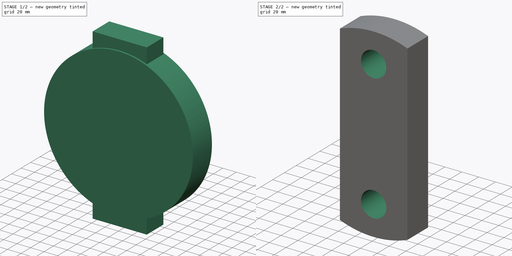
[diagram: build sequence overview — one tinted view per stage of 2, left to right]
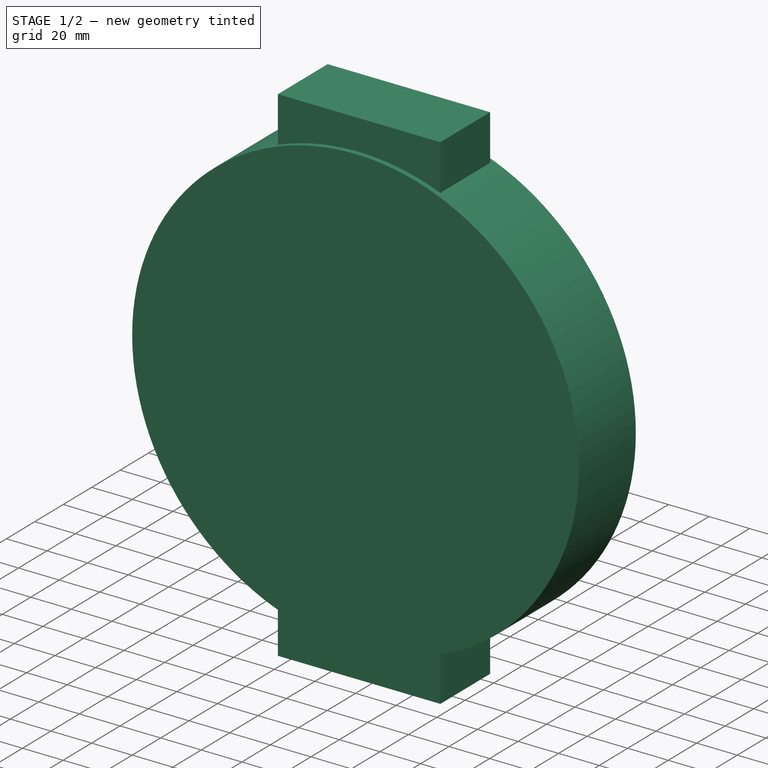
[diagram: stage 1 of 2 — iso view after this stage's code; geometry added in this stage tinted green]
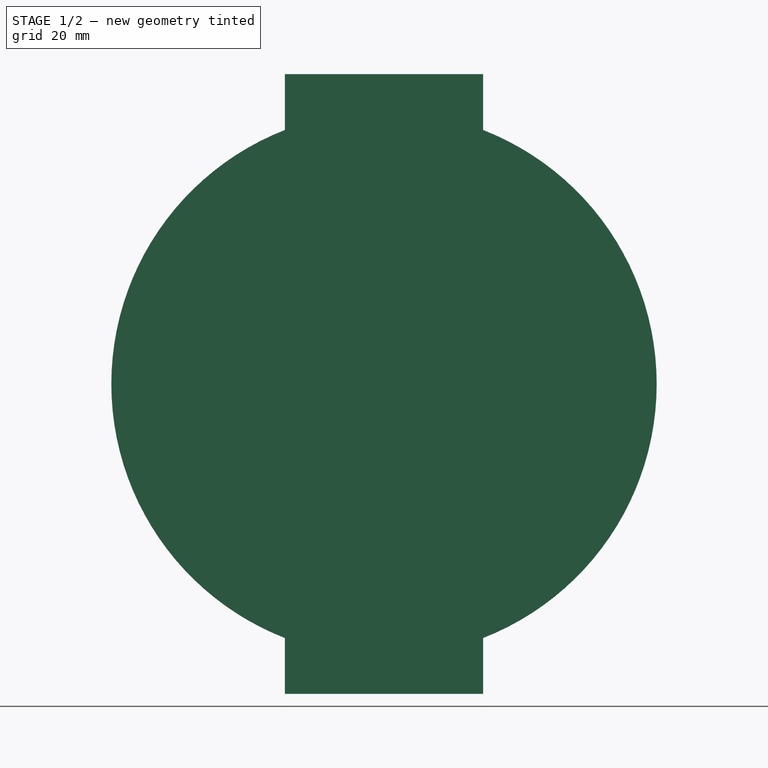
[diagram: stage 1 of 2 — front view after this stage's code; geometry added in this stage tinted green]
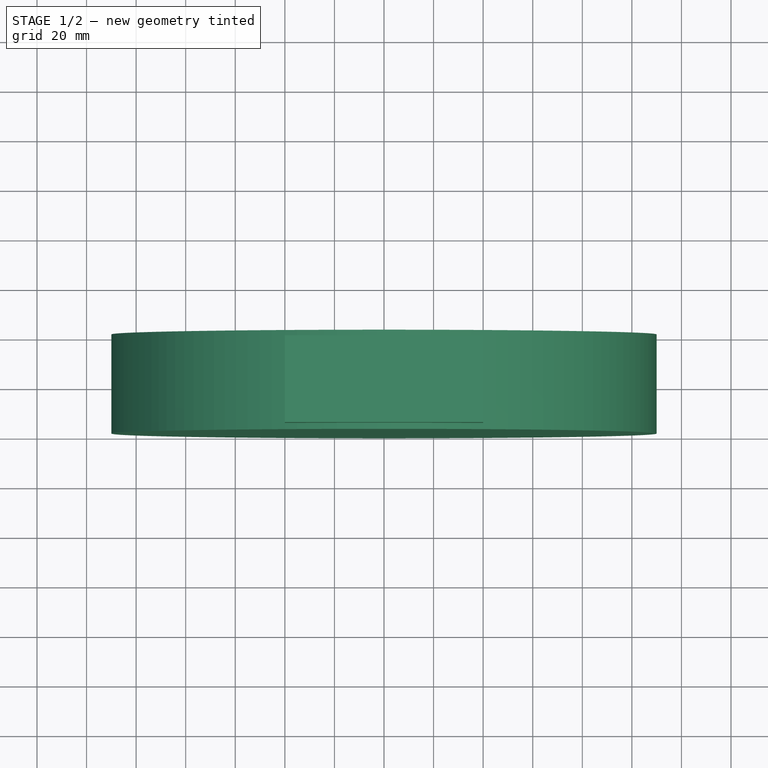
[diagram: stage 1 of 2 — top view after this stage's code; geometry added in this stage tinted green]
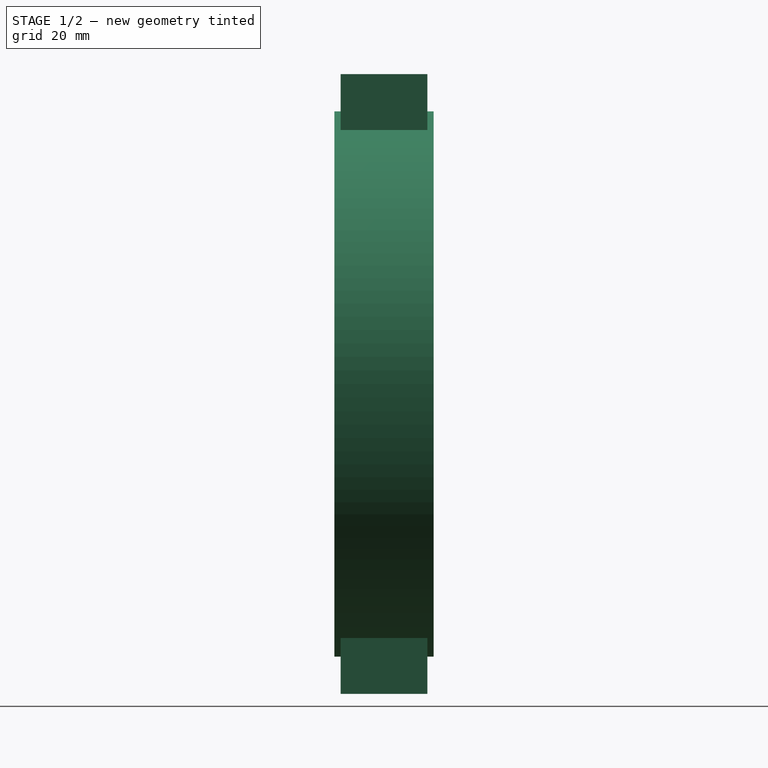
[diagram: stage 1 of 2 — right view after this stage's code; geometry added in this stage tinted green]
FCSTD DOCUMENT  (FreeCAD 0.16RUnknown)
Label: lateral1
License: All rights reserved
LicenseURL: http://en.wikipedia.org/wiki/All_rights_reserved
objects: Sketcher::SketchObject×3, PartDesign::Pad×2, Part::MultiCommon×1, PartDesign::Pocket×1
note: 10 computed .brp shape members not serialized (recipe doc carries the construction recipe); baked Part::Feature solids carry a one-line shape summary decoded from their .brp

FEATURE [Sketcher::SketchObject] Sketch
  Placement = pos=(0,0,0) rot=(-1,0,0;4.71239rad)
  sketch-geometry (4):
    g0: LineSegment StartX=-40 StartY=125 StartZ=0 EndX=40 EndY=125 EndZ=0
    g1: LineSegment StartX=40 StartY=125 StartZ=0 EndX=40 EndY=-125 EndZ=0
    g2: LineSegment StartX=40 StartY=-125 StartZ=0 EndX=-40 EndY=-125 EndZ=0
    g3: LineSegment StartX=-40 StartY=-125 StartZ=0 EndX=-40 EndY=125 EndZ=0
  constraints (12):
    c: Coincident(g0,g1)
    c: Coincident(g1,g2)
    c: Coincident(g2,g3)
    c: Coincident(g3,g0)
    c: Horizontal(g0)
    c: Horizontal(g2)
    c: Vertical(g1)
    c: Vertical(g3)
    c: Symmetric(g0,g0,g-2)
    c: Symmetric(g0,g1,g-1)
    c: DistanceX(g0,g0) = 80
    c: DistanceY(g1,g1) = 250
FEATURE [PartDesign::Pad] Pad
  Length = 35
  Length2 = 100
  Midplane = true
  Placement = pos=(0,0,0) rot=(-1,0,0;4.71239rad)
  Sketch = -> Sketch
  Type = 0
FEATURE [Sketcher::SketchObject] Sketch001
  Placement = pos=(0,0,0) rot=(-1,0,0;4.71239rad)
  sketch-geometry (1):
    g0: Circle CenterX=0 CenterY=0 CenterZ=0 NormalX=0 NormalY=0 NormalZ=1 Radius=110
  constraints (3):
    c: PointOnObject(g0,g-1)
    c: PointOnObject(g0,g-2)
    c: Radius(g0) = 110
FEATURE [PartDesign::Pad] Pad001
  Length = 40
  Length2 = 100
  Midplane = true
  Placement = pos=(0,0,0) rot=(-1,0,0;4.71239rad)
  Sketch = -> Sketch001
  Type = 0
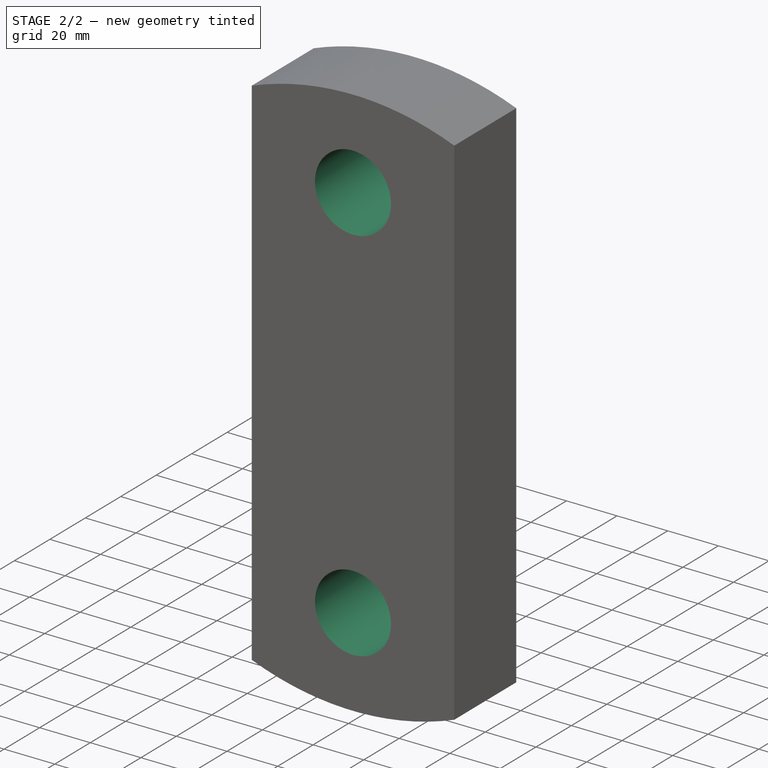
[diagram: stage 2 of 2 — iso view after this stage's code; geometry added in this stage tinted green]
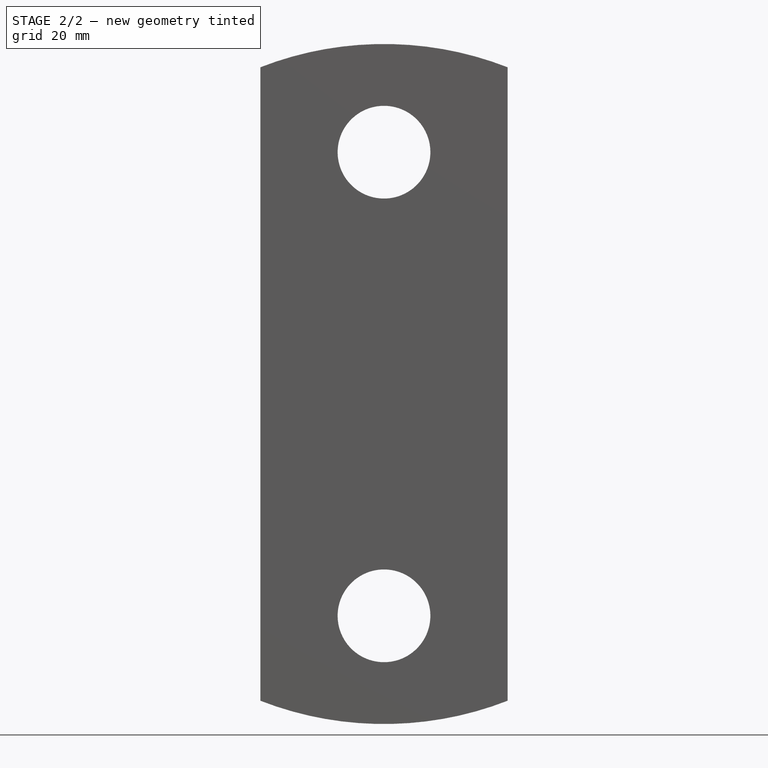
[diagram: stage 2 of 2 — front view after this stage's code; geometry added in this stage tinted green]
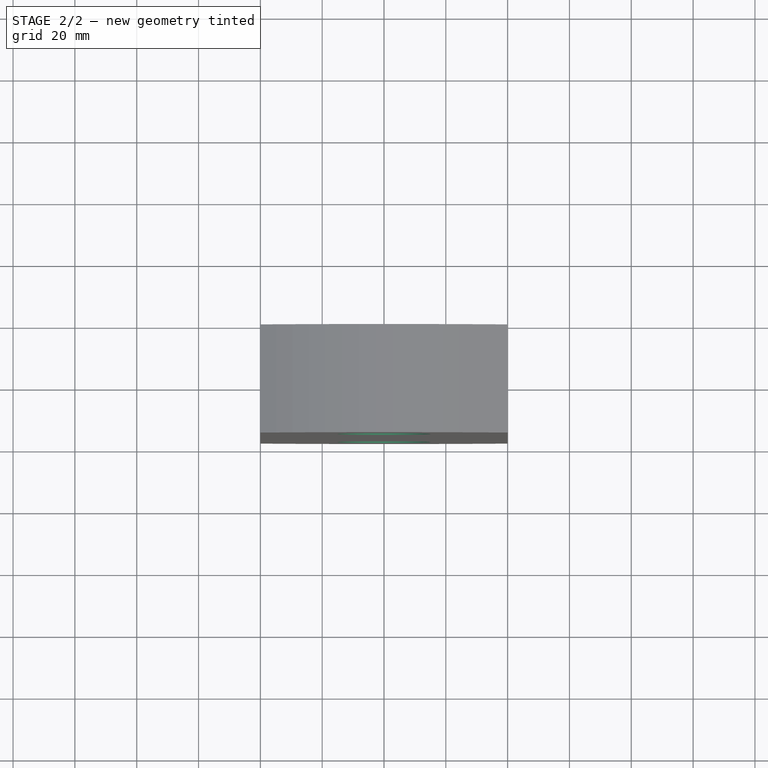
[diagram: stage 2 of 2 — top view after this stage's code; geometry added in this stage tinted green]
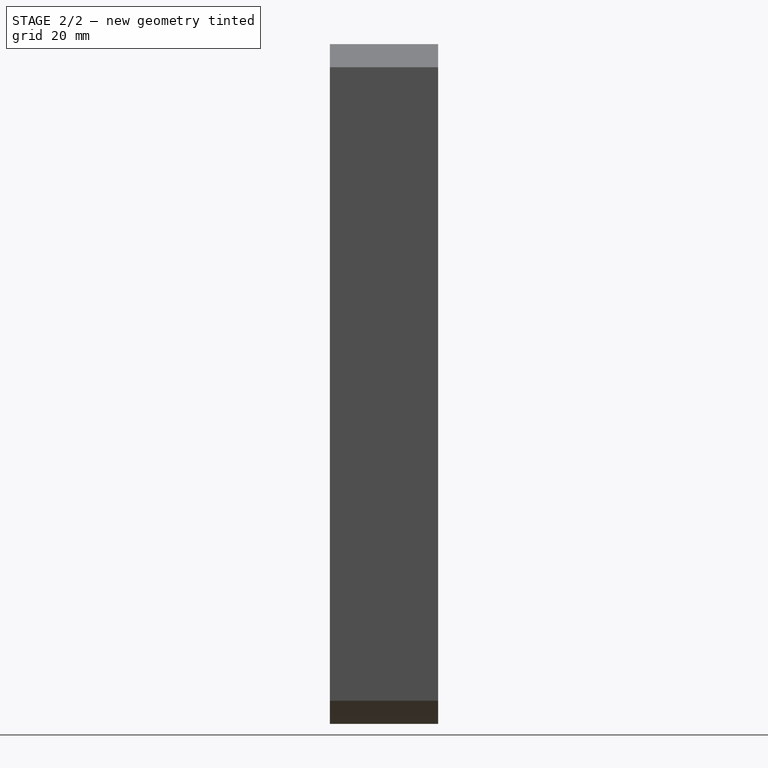
[diagram: stage 2 of 2 — right view after this stage's code; geometry added in this stage tinted green]
FEATURE [Part::MultiCommon] Common
  Shapes = -> [Pad,Pad001]
FEATURE [Sketcher::SketchObject] Sketch002
  Placement = pos=(0,-17.5,0) rot=(1,0,0;1.5708rad)
  Support = -> Common [Face4]
  sketch-geometry (2):
    g0: Circle CenterX=0 CenterY=75 CenterZ=0 NormalX=0 NormalY=0 NormalZ=1 Radius=15
    g1: Circle CenterX=0 CenterY=-75 CenterZ=0 NormalX=0 NormalY=0 NormalZ=1 Radius=15
  constraints (6):
    c: PointOnObject(g0,g-2)
    c: PointOnObject(g1,g-2)
    c: Equal(g1,g0)
    c: DistanceY(g1,g0) = 150
    c: Radius(g1) = 15
    c: DistanceY(g1,g-1) = 75
FEATURE [PartDesign::Pocket] Pocket
  Length = 5
  Sketch = -> Sketch002
  Type = 1
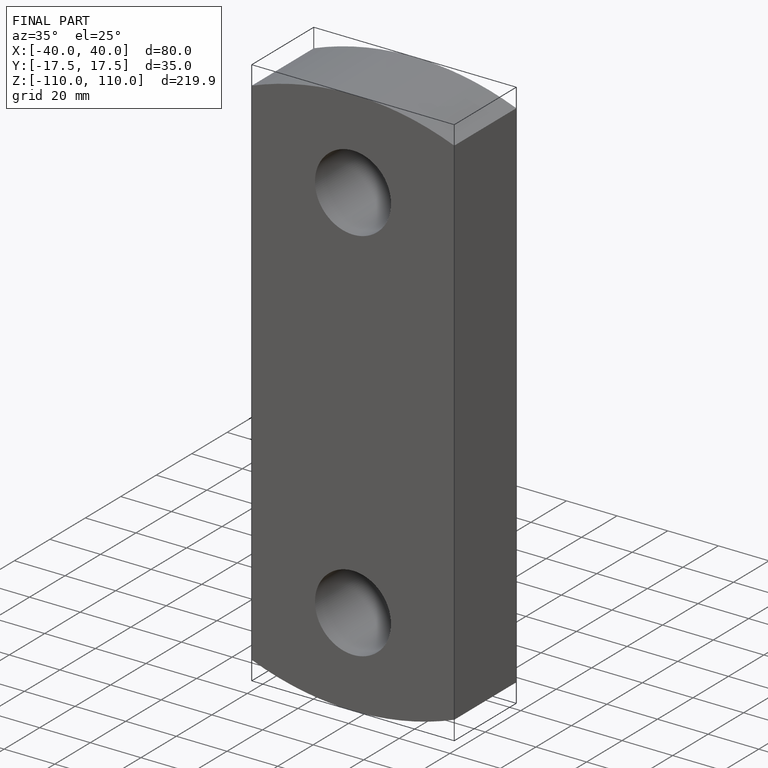
[diagram: finished part — iso view with bounding-box wireframe]
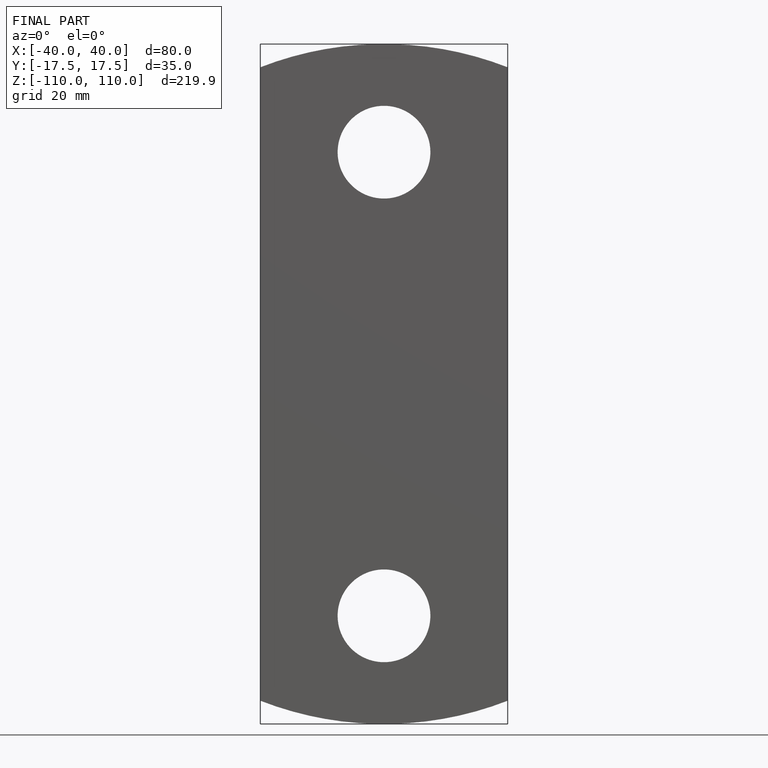
[diagram: finished part — front view with bounding-box wireframe]
